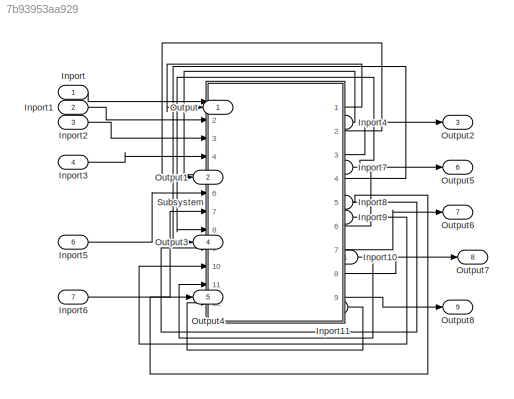
MODEL slx_7b93953aa929
KIND model
CONFIG AbsTol = auto
CONFIG EnableMultiTasking = off
CONFIG FixedStep = auto
CONFIG MaxStep = auto
CONFIG MinStep = auto
CONFIG RelTol = 1e-3
CONFIG SampleTimeConstraint = Unconstrained
CONFIG SolverName = VariableStepAuto
CONFIG StartTime = 0.0
CONFIG StopTime = 10.0
BLOCK [Inport] Inport
BLOCK [Inport] Inport1
  Port = 2
BLOCK [Inport] Inport10
  Port = 11
BLOCK [Inport] Inport11
  Port = 12
BLOCK [Inport] Inport2
  Port = 3
BLOCK [Inport] Inport3
  Port = 4
BLOCK [Inport] Inport4
  Port = 5
BLOCK [Inport] Inport5
  Port = 6
BLOCK [Inport] Inport6
  Port = 7
BLOCK [Inport] Inport7
  Port = 8
BLOCK [Inport] Inport8
  Port = 9
BLOCK [Inport] Inport9
  Port = 10
BLOCK [Outport] Output
BLOCK [Outport] Output1
  Port = 2
BLOCK [Outport] Output2
  Port = 3
BLOCK [Outport] Output3
  Port = 4
BLOCK [Outport] Output4
  Port = 5
BLOCK [Outport] Output5
  Port = 6
BLOCK [Outport] Output6
  Port = 7
BLOCK [Outport] Output7
  Port = 8
BLOCK [Outport] Output8
  Port = 9
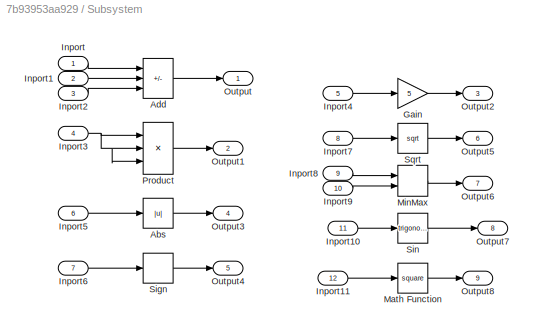
BLOCK [SubSystem] Subsystem
  Ports = [12, 9]
  RequestExecContextInheritance = off
BLOCK [Abs] Subsystem/Abs
  SaturateOnIntegerOverflow = off
BLOCK [Sum] Subsystem/Add
  IconShape = rectangular
  Inputs = ++-
  Ports = [3, 1]
BLOCK [Gain] Subsystem/Gain
  Gain = 5
BLOCK [Inport] Subsystem/Inport
BLOCK [Inport] Subsystem/Inport1
  Port = 2
BLOCK [Inport] Subsystem/Inport10
  Port = 11
BLOCK [Inport] Subsystem/Inport11
  Port = 12
BLOCK [Inport] Subsystem/Inport2
  Port = 3
BLOCK [Inport] Subsystem/Inport3
  Port = 4
BLOCK [Inport] Subsystem/Inport4
  Port = 5
BLOCK [Inport] Subsystem/Inport5
  Port = 6
BLOCK [Inport] Subsystem/Inport6
  Port = 7
BLOCK [Inport] Subsystem/Inport7
  Port = 8
BLOCK [Inport] Subsystem/Inport8
  Port = 9
BLOCK [Inport] Subsystem/Inport9
  Port = 10
BLOCK [Math] Subsystem/Math Function
  Operator = square
  Ports = [1, 1]
BLOCK [MinMax] Subsystem/MinMax
  Function = max
  Inputs = 2
  Ports = [2, 1]
BLOCK [Outport] Subsystem/Output
BLOCK [Outport] Subsystem/Output1
  Port = 2
BLOCK [Outport] Subsystem/Output2
  Port = 3
BLOCK [Outport] Subsystem/Output3
  Port = 4
BLOCK [Outport] Subsystem/Output4
  Port = 5
BLOCK [Outport] Subsystem/Output5
  Port = 6
BLOCK [Outport] Subsystem/Output6
  Port = 7
BLOCK [Outport] Subsystem/Output7
  Port = 8
BLOCK [Outport] Subsystem/Output8
  Port = 9
BLOCK [Product] Subsystem/Product
  Inputs = **/
  Ports = [3, 1]
BLOCK [Signum] Subsystem/Sign
BLOCK [Trigonometry] Subsystem/Sin
  Ports = [1, 1]
BLOCK [Sqrt] Subsystem/Sqrt
LINE Inport10:1 -> Subsystem:11
LINE Inport11:1 -> Subsystem:12
LINE Inport1:1 -> Subsystem:2
LINE Inport2:1 -> Subsystem:3
LINE Inport3:1 -> Subsystem:4
LINE Inport4:1 -> Subsystem:5
LINE Inport5:1 -> Subsystem:6
LINE Inport6:1 -> Subsystem:7
LINE Inport7:1 -> Subsystem:8
LINE Inport8:1 -> Subsystem:9
LINE Inport9:1 -> Subsystem:10
LINE Inport:1 -> Subsystem:1
LINE Subsystem/Abs:1 -> Subsystem/Output3:1
LINE Subsystem/Add:1 -> Subsystem/Output:1
LINE Subsystem/Gain:1 -> Subsystem/Output2:1
LINE Subsystem/Inport10:1 -> Subsystem/Sin:1
LINE Subsystem/Inport11:1 -> Subsystem/Math Function:1
LINE Subsystem/Inport1:1 -> Subsystem/Add:2
LINE Subsystem/Inport2:1 -> Subsystem/Add:3
NET Subsystem/Inport3:1 -> Subsystem/Product:1, Subsystem/Product:2, Subsystem/Product:3
LINE Subsystem/Inport4:1 -> Subsystem/Gain:1
LINE Subsystem/Inport5:1 -> Subsystem/Abs:1
LINE Subsystem/Inport6:1 -> Subsystem/Sign:1
LINE Subsystem/Inport7:1 -> Subsystem/Sqrt:1
LINE Subsystem/Inport8:1 -> Subsystem/MinMax:1
LINE Subsystem/Inport9:1 -> Subsystem/MinMax:2
LINE Subsystem/Inport:1 -> Subsystem/Add:1
LINE Subsystem/Math Function:1 -> Subsystem/Output8:1
LINE Subsystem/MinMax:1 -> Subsystem/Output6:1
LINE Subsystem/Product:1 -> Subsystem/Output1:1
LINE Subsystem/Sign:1 -> Subsystem/Output4:1
LINE Subsystem/Sin:1 -> Subsystem/Output7:1
LINE Subsystem/Sqrt:1 -> Subsystem/Output5:1
LINE Subsystem:1 -> Output:1
LINE Subsystem:2 -> Output1:1
LINE Subsystem:3 -> Output2:1
LINE Subsystem:4 -> Output3:1
LINE Subsystem:5 -> Output4:1
LINE Subsystem:6 -> Output5:1
LINE Subsystem:7 -> Output6:1
LINE Subsystem:8 -> Output7:1
LINE Subsystem:9 -> Output8:1
note: NET lines group one-source signal fan-out (src -> all destinations, sorted); 1:1 wires keep LINE
